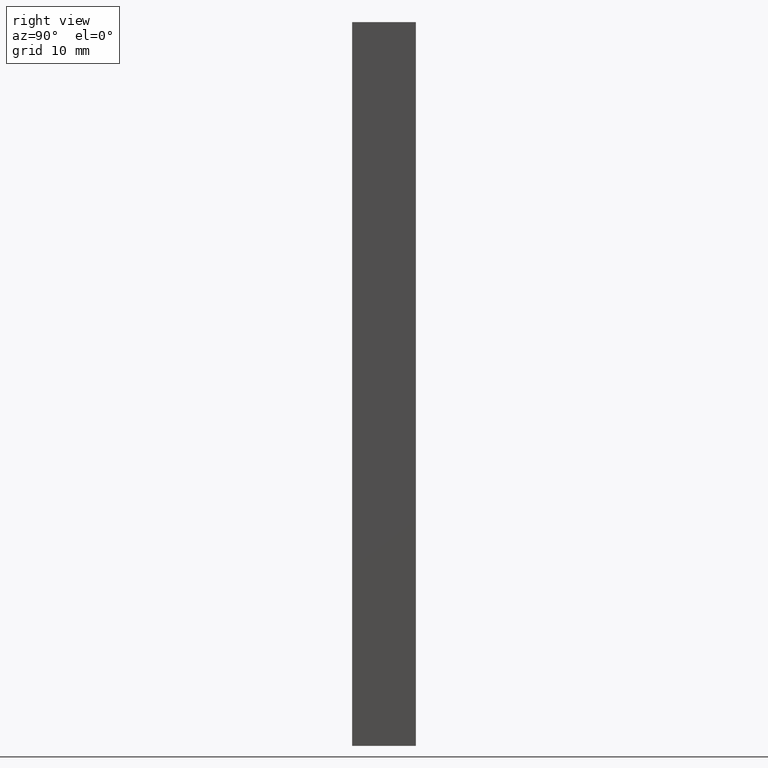
[diagram: clean part render]
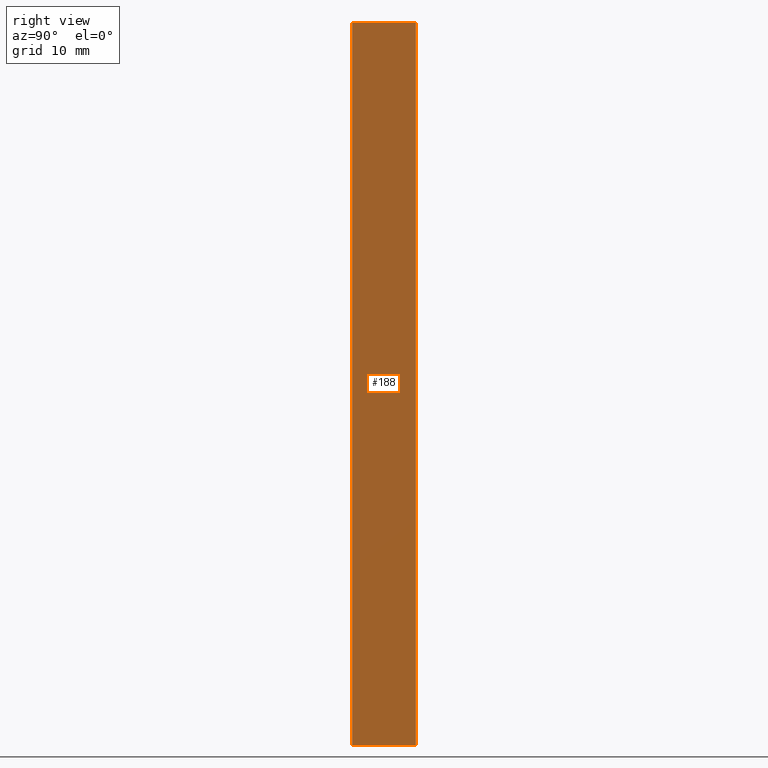
[diagram: same view with one face highlighted and labeled with its STEP entity id]
A machine part, right view. The second image highlights one B-rep face of the part: STEP entity #188.
In plain terms, the highlighted planar face has unit normal (1, 0, 0).
Its self-contained STEP definition (entity closure, byte-faithful):
#22=FACE_OUTER_BOUND('',#32,.T.);
#32=EDGE_LOOP('',(#155,#156,#157,#158));
#35=LINE('',#274,#59);
#55=LINE('',#313,#79);
#56=LINE('',#316,#80);
#57=LINE('',#317,#81);
#59=VECTOR('',#228,10.);
#79=VECTOR('',#260,10.);
#80=VECTOR('',#263,10.);
#81=VECTOR('',#264,10.);
#83=VERTEX_POINT('',#272);
#84=VERTEX_POINT('',#273);
#97=VERTEX_POINT('',#311);
#98=VERTEX_POINT('',#315);
#99=EDGE_CURVE('',#83,#84,#35,.T.);
#119=EDGE_CURVE('',#84,#97,#55,.T.);
#120=EDGE_CURVE('',#97,#98,#56,.T.);
#121=EDGE_CURVE('',#83,#98,#57,.T.);
#155=ORIENTED_EDGE('',*,*,#120,.T.);
#156=ORIENTED_EDGE('',*,*,#121,.F.);
#157=ORIENTED_EDGE('',*,*,#99,.T.);
#158=ORIENTED_EDGE('',*,*,#119,.T.);
#178=PLANE('',#221);
#188=ADVANCED_FACE('',(#22),#178,.T.);
#221=AXIS2_PLACEMENT_3D('',#314,#261,#262);
#228=DIRECTION('',(0.,1.,0.));
#260=DIRECTION('',(0.,0.,1.));
#261=DIRECTION('center_axis',(1.,0.,0.));
#262=DIRECTION('ref_axis',(0.,0.,-1.));
#263=DIRECTION('',(0.,-1.,0.));
#264=DIRECTION('',(0.,0.,1.));
#272=CARTESIAN_POINT('',(4.,-1.,-34.));
#273=CARTESIAN_POINT('',(4.,5.,-34.));
#274=CARTESIAN_POINT('',(4.,-1.,-34.));
#311=CARTESIAN_POINT('',(4.,5.,34.));
#313=CARTESIAN_POINT('',(4.,5.,0.));
#314=CARTESIAN_POINT('Origin',(4.,5.,0.));
#315=CARTESIAN_POINT('',(4.,-1.,34.));
#316=CARTESIAN_POINT('',(4.,-1.,34.));
#317=CARTESIAN_POINT('',(4.,-1.,0.));